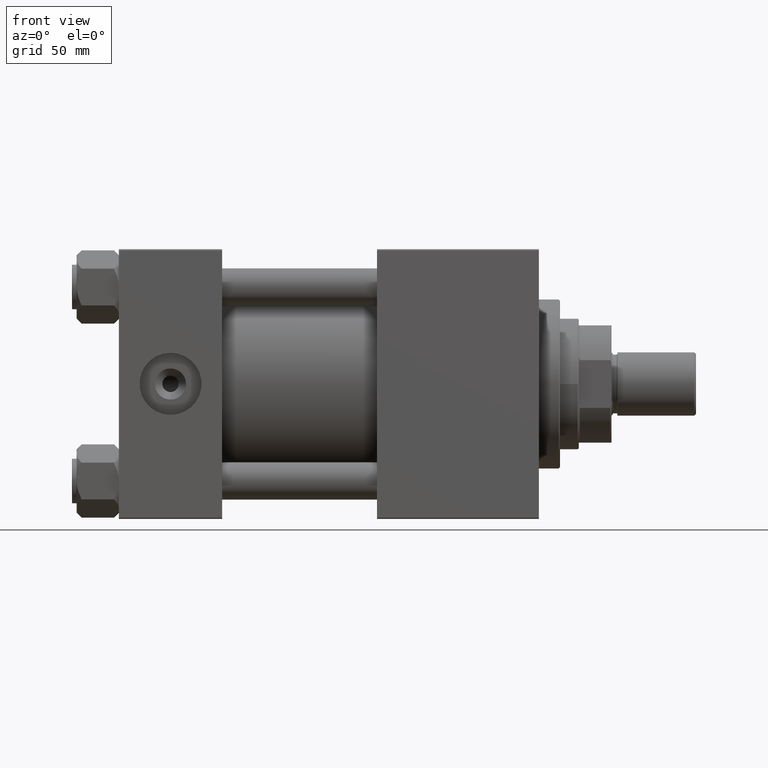
[diagram: clean part render]
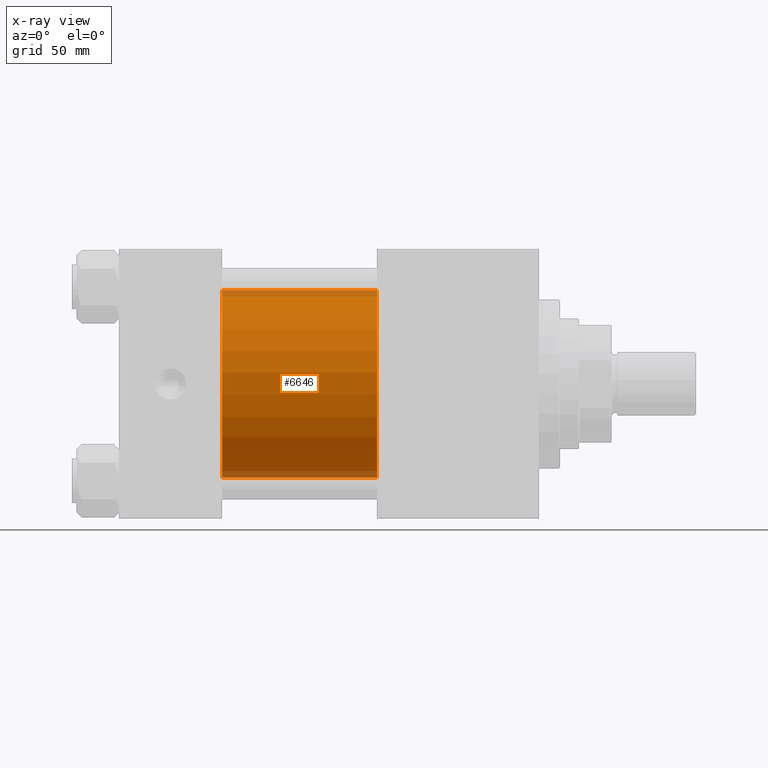
[diagram: x-ray — body ghosted, one internal face saturated and labeled with its STEP entity id]
A machine part, front view, then the same camera in x-ray: the body is ghosted and one INTERNAL B-rep face — a face not visible from any outside direction — is saturated and labeled: STEP entity #6646.
In plain terms, the highlighted cylindrical surface (partial cylindrical patch) has radius 40 mm, axis along (-1, -0, -0).
Its self-contained STEP definition (entity closure, byte-faithful):
#155 = CIRCLE ( 'NONE', #24142, 40.00000000000000000 ) ;
#4814 = CARTESIAN_POINT ( 'NONE',  ( 110.0000000000000000, -2.602085213965210642E-15, 40.00000000000000000 ) ) ;
#6173 = CARTESIAN_POINT ( 'NONE',  ( 110.0000000000000000, -2.602085213965210642E-15, 0.000000000000000000 ) ) ;
#6646 = ADVANCED_FACE ( 'NONE', ( #28423 ), #40826, .F. ) ;
#8952 = DIRECTION ( 'NONE',  ( -1.000000000000000000, -0.000000000000000000, -0.000000000000000000 ) ) ;
#10414 = ORIENTED_EDGE ( 'NONE', *, *, #14804, .F. ) ;
#13103 = DIRECTION ( 'NONE',  ( 0.000000000000000000, 0.000000000000000000, 1.000000000000000000 ) ) ;
#14804 = EDGE_CURVE ( 'NONE', #47879, #26046, #32563, .T. ) ;
#17897 = LINE ( 'NONE', #29065, #18677 ) ;
#18677 = VECTOR ( 'NONE', #40967, 1000.000000000000000 ) ;
#19873 = DIRECTION ( 'NONE',  ( 0.000000000000000000, 0.000000000000000000, -1.000000000000000000 ) ) ;
#22009 = DIRECTION ( 'NONE',  ( 1.000000000000000000, 0.000000000000000000, 0.000000000000000000 ) ) ;
#22548 = CIRCLE ( 'NONE', #37413, 40.00000000000000000 ) ;
#23314 = CARTESIAN_POINT ( 'NONE',  ( 44.00000000000000000, -2.602085213965210642E-15, 40.00000000000000000 ) ) ;
#24142 = AXIS2_PLACEMENT_3D ( 'NONE', #6173, #22009, #48979 ) ;
#24770 = DIRECTION ( 'NONE',  ( 1.000000000000000000, 0.000000000000000000, 0.000000000000000000 ) ) ;
#25669 = VERTEX_POINT ( 'NONE', #29091 ) ;
#26046 = VERTEX_POINT ( 'NONE', #23314 ) ;
#27128 = VECTOR ( 'NONE', #8952, 1000.000000000000000 ) ;
#27438 = VERTEX_POINT ( 'NONE', #43970 ) ;
#28423 = FACE_OUTER_BOUND ( 'NONE', #50542, .T. ) ;
#29065 = CARTESIAN_POINT ( 'NONE',  ( 110.0000000000000000, 2.296501982624201990E-15, -40.00000000000000000 ) ) ;
#29091 = CARTESIAN_POINT ( 'NONE',  ( 110.0000000000000000, 2.296501982624201990E-15, -40.00000000000000000 ) ) ;
#30553 = CARTESIAN_POINT ( 'NONE',  ( 110.0000000000000000, -2.602085213965210642E-15, 40.00000000000000000 ) ) ;
#31855 = EDGE_CURVE ( 'NONE', #47879, #25669, #155, .T. ) ;
#32406 = ORIENTED_EDGE ( 'NONE', *, *, #33123, .F. ) ;
#32563 = LINE ( 'NONE', #4814, #27128 ) ;
#33123 = EDGE_CURVE ( 'NONE', #26046, #27438, #22548, .T. ) ;
#34956 = ORIENTED_EDGE ( 'NONE', *, *, #43173, .T. ) ;
#37413 = AXIS2_PLACEMENT_3D ( 'NONE', #44463, #24770, #19873 ) ;
#40826 = CYLINDRICAL_SURFACE ( 'NONE', #47497, 40.00000000000000000 ) ;
#40967 = DIRECTION ( 'NONE',  ( -1.000000000000000000, -0.000000000000000000, -0.000000000000000000 ) ) ;
#41302 = ORIENTED_EDGE ( 'NONE', *, *, #31855, .T. ) ;
#43173 = EDGE_CURVE ( 'NONE', #25669, #27438, #17897, .T. ) ;
#43970 = CARTESIAN_POINT ( 'NONE',  ( 44.00000000000000000, 2.296501982624201990E-15, -40.00000000000000000 ) ) ;
#44219 = CARTESIAN_POINT ( 'NONE',  ( 110.0000000000000000, -2.602085213965210642E-15, 0.000000000000000000 ) ) ;
#44463 = CARTESIAN_POINT ( 'NONE',  ( 44.00000000000000000, -2.602085213965210642E-15, 0.000000000000000000 ) ) ;
#47497 = AXIS2_PLACEMENT_3D ( 'NONE', #44219, #48124, #13103 ) ;
#47879 = VERTEX_POINT ( 'NONE', #30553 ) ;
#48124 = DIRECTION ( 'NONE',  ( -1.000000000000000000, -0.000000000000000000, -0.000000000000000000 ) ) ;
#48979 = DIRECTION ( 'NONE',  ( 0.000000000000000000, 0.000000000000000000, -1.000000000000000000 ) ) ;
#50542 = EDGE_LOOP ( 'NONE', ( #41302, #34956, #32406, #10414 ) ) ;